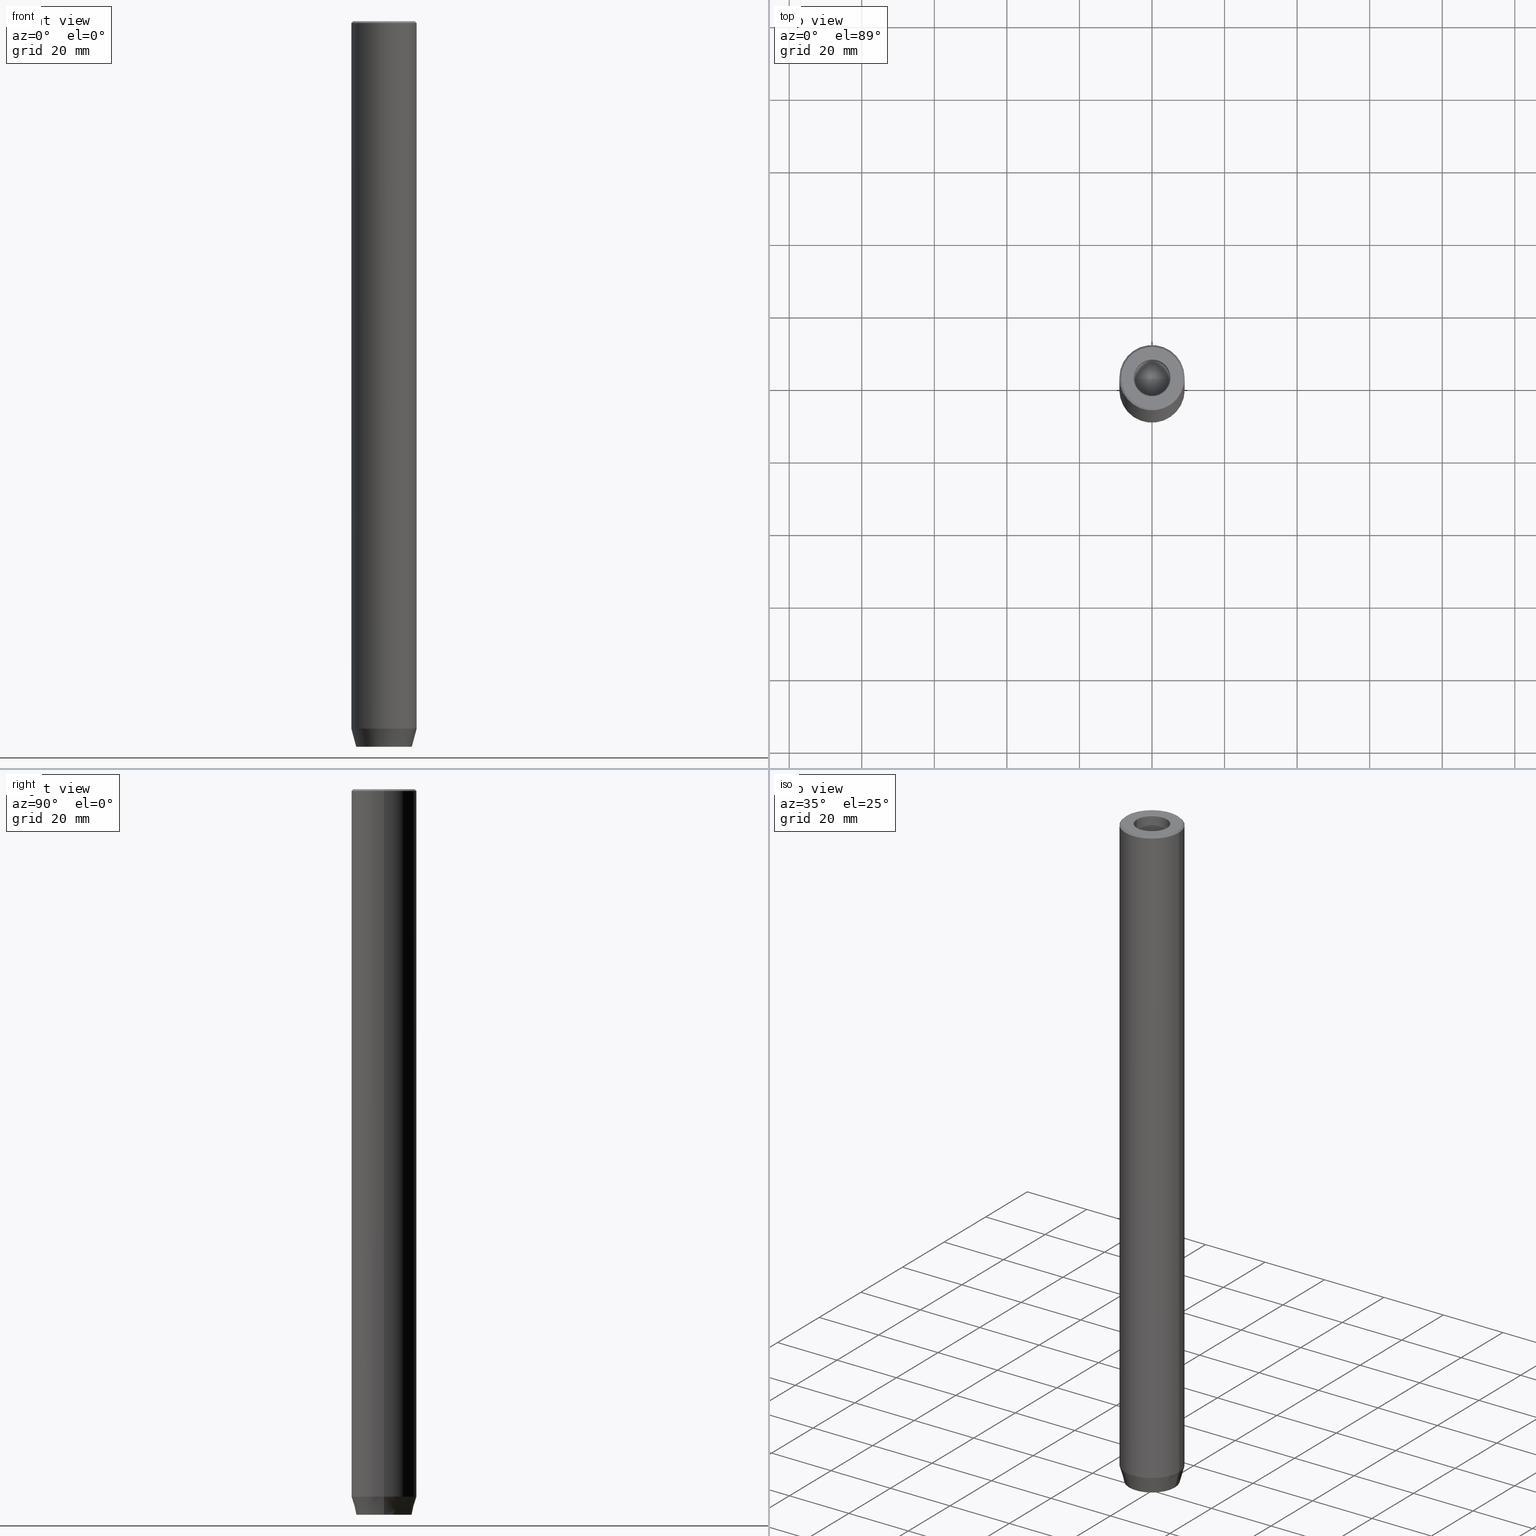
[diagram: canonical four-view strip — front | top / right | iso, engineering-drawing reading convention]
A machine part, canonical four-view strip (front | top / right | iso — engineering-drawing reading convention). The complete STEP part file that produces these views, byte-faithful:
ISO-10303-21;
HEADER;
FILE_DESCRIPTION (( 'STEP AP203' ),
    '1' );
FILE_NAME ('695a.STEP',
    '2024-01-02T17:27:58',
    ( '' ),
    ( '' ),
    'SwSTEP 2.0',
    'SolidWorks 2019',
    '' );
FILE_SCHEMA (( 'CONFIG_CONTROL_DESIGN' ));
ENDSEC;

DATA;
#1 = AXIS2_PLACEMENT_3D ( 'NONE', #611, #372, #420 ) ;
#2 = LOCAL_TIME ( 18, 27, 58.00000000000000000, #444 ) ;
#3 = EDGE_CURVE ( 'NONE', #316, #88, #333, .T. ) ;
#4 = DIRECTION ( 'NONE',  ( 1.000000000000000000, 0.000000000000000000, 0.000000000000000000 ) ) ;
#5 = CARTESIAN_POINT ( 'NONE',  ( 0.000000000000000000, 0.000000000000000000, -195.0000000000000000 ) ) ;
#6 = VERTEX_POINT ( 'NONE', #570 ) ;
#7 = PERSON_AND_ORGANIZATION_ROLE ( 'classification_officer' ) ;
#8 = DIRECTION ( 'NONE',  ( 0.8660254037844387076, -0.4999999999999997780, 0.000000000000000000 ) ) ;
#9 = ORIENTED_EDGE ( 'NONE', *, *, #29, .F. ) ;
#10 = DIRECTION ( 'NONE',  ( 1.000000000000000000, 0.000000000000000000, 0.000000000000000000 ) ) ;
#11 = FACE_OUTER_BOUND ( 'NONE', #560, .T. ) ;
#12 = PLANE ( 'NONE',  #124 ) ;
#13 = ORIENTED_EDGE ( 'NONE', *, *, #536, .T. ) ;
#14 = CALENDAR_DATE ( 2024, 2, 1 ) ;
#15 = CONICAL_SURFACE ( 'NONE', #328, 8.500000000000007105, 0.7853981633974447263 ) ;
#16 = VECTOR ( 'NONE', #206, 1000.000000000000114 ) ;
#17 = DIRECTION ( 'NONE',  ( 0.000000000000000000, 0.000000000000000000, -1.000000000000000000 ) ) ;
#18 = FACE_OUTER_BOUND ( 'NONE', #561, .T. ) ;
#19 = DIRECTION ( 'NONE',  ( 1.000000000000000000, 0.000000000000000000, 0.000000000000000000 ) ) ;
#20 = ORIENTED_EDGE ( 'NONE', *, *, #636, .F. ) ;
#21 = FACE_BOUND ( 'NONE', #282, .T. ) ;
#22 = DIRECTION ( 'NONE',  ( -0.000000000000000000, -0.000000000000000000, 1.000000000000000000 ) ) ;
#23 = DIRECTION ( 'NONE',  ( -0.000000000000000000, -0.000000000000000000, 1.000000000000000000 ) ) ;
#24 = ORIENTED_EDGE ( 'NONE', *, *, #416, .T. ) ;
#25 = DIRECTION ( 'NONE',  ( -0.000000000000000000, -0.000000000000000000, 1.000000000000000000 ) ) ;
#26 = DIRECTION ( 'NONE',  ( -2.503857664561932376E-16, -1.000000000000000000, 0.000000000000000000 ) ) ;
#27 = DIRECTION ( 'NONE',  ( -0.000000000000000000, -0.000000000000000000, 1.000000000000000000 ) ) ;
#28 = VECTOR ( 'NONE', #515, 1000.000000000000000 ) ;
#29 = EDGE_CURVE ( 'NONE', #35, #577, #273, .T. ) ;
#30 = DIRECTION ( 'NONE',  ( -1.000000000000000000, 0.000000000000000000, -0.000000000000000000 ) ) ;
#31 = APPROVAL_PERSON_ORGANIZATION ( #506, #437, #251 ) ;
#32 = EDGE_CURVE ( 'NONE', #88, #621, #207, .T. ) ;
#33 = LINE ( 'NONE', #327, #69 ) ;
#34 = PLANE ( 'NONE',  #583 ) ;
#35 = VERTEX_POINT ( 'NONE', #417 ) ;
#36 = PLANE ( 'NONE',  #180 ) ;
#37 = ADVANCED_FACE ( 'NONE', ( #568 ), #36, .F. ) ;
#38 = ORIENTED_EDGE ( 'NONE', *, *, #32, .F. ) ;
#39 = CARTESIAN_POINT ( 'NONE',  ( -8.500000000000007105, 0.000000000000000000, 0.000000000000000000 ) ) ;
#40 = EDGE_LOOP ( 'NONE', ( #534, #91, #280, #38 ) ) ;
#41 = VECTOR ( 'NONE', #290, 1000.000000000000114 ) ;
#42 = VERTEX_POINT ( 'NONE', #39 ) ;
#43 = UNCERTAINTY_MEASURE_WITH_UNIT (LENGTH_MEASURE( 1.000000000000000082E-05 ), #162, 'distance_accuracy_value', 'NONE');
#44 = CARTESIAN_POINT ( 'NONE',  ( 8.500000000000007105, 1.071565949253934321E-15, 0.000000000000000000 ) ) ;
#45 = VECTOR ( 'NONE', #558, 1000.000000000000114 ) ;
#46 = DIRECTION ( 'NONE',  ( 0.000000000000000000, 0.000000000000000000, -1.000000000000000000 ) ) ;
#47 = VECTOR ( 'NONE', #538, 1000.000000000000000 ) ;
#48 = EDGE_CURVE ( 'NONE', #138, #556, #233, .T. ) ;
#49 = CARTESIAN_POINT ( 'NONE',  ( -3.000000000000000000, 1.732050807568877859, -194.2000000000000171 ) ) ;
#50 = PERSON_AND_ORGANIZATION ( #546, #148 ) ;
#51 = EDGE_CURVE ( 'NONE', #42, #505, #33, .T. ) ;
#52 = FACE_OUTER_BOUND ( 'NONE', #216, .T. ) ;
#53 = EDGE_CURVE ( 'NONE', #59, #465, #540, .T. ) ;
#54 = CALENDAR_DATE ( 2024, 2, 1 ) ;
#55 = PRODUCT_DEFINITION ( 'NEZN�M�', '', #381, #488 ) ;
#56 = LINE ( 'NONE', #348, #432 ) ;
#57 = AXIS2_PLACEMENT_3D ( 'NONE', #565, #374, #322 ) ;
#58 = CIRCLE ( 'NONE', #247, 9.000000000000000000 ) ;
#59 = VERTEX_POINT ( 'NONE', #377 ) ;
#60 = TOROIDAL_SURFACE ( 'NONE', #172, 5.299999999999997158, 0.2999999999999999889 ) ;
#61 = FACE_OUTER_BOUND ( 'NONE', #537, .T. ) ;
#62 = ORIENTED_EDGE ( 'NONE', *, *, #291, .T. ) ;
#63 = COORDINATED_UNIVERSAL_TIME_OFFSET ( 1, 0, .AHEAD. ) ;
#64 = CARTESIAN_POINT ( 'NONE',  ( -1.499999999999999112, -2.598076211353316012, -194.2000000000000171 ) ) ;
#65 = CARTESIAN_POINT ( 'NONE',  ( -3.000000000000000888, -1.732050807568876527, -200.0000000000000000 ) ) ;
#66 = VERTEX_POINT ( 'NONE', #137 ) ;
#67 = DIRECTION ( 'NONE',  ( -0.000000000000000000, -0.000000000000000000, 1.000000000000000000 ) ) ;
#68 = DIRECTION ( 'NONE',  ( -0.000000000000000000, -0.000000000000000000, 1.000000000000000000 ) ) ;
#69 = VECTOR ( 'NONE', #270, 1000.000000000000114 ) ;
#70 = ORIENTED_EDGE ( 'NONE', *, *, #231, .F. ) ;
#71 = PRODUCT_RELATED_PRODUCT_CATEGORY ( 'detail', '', ( #249 ) ) ;
#72 = CIRCLE ( 'NONE', #86, 4.999999999999995559 ) ;
#73 = AXIS2_PLACEMENT_3D ( 'NONE', #350, #301, #76 ) ;
#74 = DIRECTION ( 'NONE',  ( -0.8660254037844387076, 0.4999999999999998335, 0.000000000000000000 ) ) ;
#75 = DIRECTION ( 'NONE',  ( 1.000000000000000000, 0.000000000000000000, 0.000000000000000000 ) ) ;
#76 = DIRECTION ( 'NONE',  ( 1.000000000000000000, 0.000000000000000000, 0.000000000000000000 ) ) ;
#77 = EDGE_LOOP ( 'NONE', ( #360, #582, #380, #305 ) ) ;
#78 = DIRECTION ( 'NONE',  ( -0.000000000000000000, -0.000000000000000000, -1.000000000000000000 ) ) ;
#79 = DIRECTION ( 'NONE',  ( 2.503857664561932376E-16, 1.000000000000000000, 0.000000000000000000 ) ) ;
#80 = EDGE_LOOP ( 'NONE', ( #93, #90, #209, #250 ) ) ;
#81 = ADVANCED_FACE ( 'NONE', ( #475 ), #403, .T. ) ;
#82 = PLANE ( 'NONE',  #502 ) ;
#83 = FACE_OUTER_BOUND ( 'NONE', #185, .T. ) ;
#84 = EDGE_CURVE ( 'NONE', #96, #331, #123, .T. ) ;
#85 = CARTESIAN_POINT ( 'NONE',  ( 0.000000000000000000, 0.000000000000000000, -200.0000000000000000 ) ) ;
#86 = AXIS2_PLACEMENT_3D ( 'NONE', #567, #22, #321 ) ;
#87 = PLANE ( 'NONE',  #630 ) ;
#88 = VERTEX_POINT ( 'NONE', #98 ) ;
#89 = DIRECTION ( 'NONE',  ( 1.000000000000000000, 0.000000000000000000, 0.000000000000000000 ) ) ;
#90 = ORIENTED_EDGE ( 'NONE', *, *, #469, .F. ) ;
#91 = ORIENTED_EDGE ( 'NONE', *, *, #252, .T. ) ;
#92 = ORIENTED_EDGE ( 'NONE', *, *, #471, .F. ) ;
#93 = ORIENTED_EDGE ( 'NONE', *, *, #215, .F. ) ;
#94 = CIRCLE ( 'NONE', #334, 9.000000000000000000 ) ;
#95 = VECTOR ( 'NONE', #308, 1000.000000000000000 ) ;
#96 = VERTEX_POINT ( 'NONE', #587 ) ;
#97 = CC_DESIGN_DATE_AND_TIME_ASSIGNMENT ( #392, #402, ( #55 ) ) ;
#98 = CARTESIAN_POINT ( 'NONE',  ( 5.299999999999997158, 0.000000000000000000, 0.000000000000000000 ) ) ;
#99 = DIRECTION ( 'NONE',  ( 1.000000000000000000, 0.000000000000000000, 0.000000000000000000 ) ) ;
#100 = APPROVAL_PERSON_ORGANIZATION ( #210, #573, #407 ) ;
#101 = EDGE_CURVE ( 'NONE', #434, #485, #145, .T. ) ;
#102 = LINE ( 'NONE', #344, #604 ) ;
#103 = CALENDAR_DATE ( 2024, 2, 1 ) ;
#104 = DIRECTION ( 'NONE',  ( 0.000000000000000000, 0.000000000000000000, -1.000000000000000000 ) ) ;
#105 = DATE_AND_TIME ( #54, #605 ) ;
#106 = CARTESIAN_POINT ( 'NONE',  ( 0.000000000000000000, 0.000000000000000000, -0.2999999999999999889 ) ) ;
#107 = ORIENTED_EDGE ( 'NONE', *, *, #84, .F. ) ;
#108 = VECTOR ( 'NONE', #400, 1000.000000000000114 ) ;
#109 = CARTESIAN_POINT ( 'NONE',  ( 0.000000000000000000, 0.000000000000000000, 0.000000000000000000 ) ) ;
#110 = DIRECTION ( 'NONE',  ( 1.000000000000000000, 0.000000000000000000, 0.000000000000000000 ) ) ;
#111 = VERTEX_POINT ( 'NONE', #436 ) ;
#112 = PERSON_AND_ORGANIZATION ( #546, #148 ) ;
#113 = CARTESIAN_POINT ( 'NONE',  ( 0.000000000000000000, 0.000000000000000000, 0.000000000000000000 ) ) ;
#114 = CARTESIAN_POINT ( 'NONE',  ( 0.000000000000000000, 0.000000000000000000, -20.00000000000000000 ) ) ;
#115 = EDGE_LOOP ( 'NONE', ( #458, #166, #528, #70 ) ) ;
#116 = CC_DESIGN_PERSON_AND_ORGANIZATION_ASSIGNMENT ( #112, #204, ( #249 ) ) ;
#117 = ORIENTED_EDGE ( 'NONE', *, *, #416, .F. ) ;
#118 = CARTESIAN_POINT ( 'NONE',  ( 0.000000000000000000, 7.660254037844380193, -200.0000000000000000 ) ) ;
#119 = CARTESIAN_POINT ( 'NONE',  ( 0.000000000000000000, 0.000000000000000000, -195.0000000000000000 ) ) ;
#120 = CARTESIAN_POINT ( 'NONE',  ( 0.000000000000000000, 0.000000000000000000, -0.2999999999999999889 ) ) ;
#121 = ORIENTED_EDGE ( 'NONE', *, *, #624, .F. ) ;
#122 = ORIENTED_EDGE ( 'NONE', *, *, #325, .F. ) ;
#123 = CIRCLE ( 'NONE', #535, 9.000000000000000000 ) ;
#124 = AXIS2_PLACEMENT_3D ( 'NONE', #612, #405, #160 ) ;
#125 = EDGE_CURVE ( 'NONE', #6, #505, #368, .T. ) ;
#126 = DIRECTION ( 'NONE',  ( 0.000000000000000000, 0.000000000000000000, -1.000000000000000000 ) ) ;
#127 = PLANE ( 'NONE',  #242 ) ;
#128 = ADVANCED_FACE ( 'NONE', ( #192 ), #548, .T. ) ;
#129 = DIRECTION ( 'NONE',  ( -0.4999999999999998335, 0.8660254037844388186, 0.000000000000000000 ) ) ;
#130 = DIRECTION ( 'NONE',  ( 0.8660254037844385966, 0.4999999999999998890, 0.000000000000000000 ) ) ;
#131 = DIRECTION ( 'NONE',  ( -0.000000000000000000, -0.000000000000000000, 1.000000000000000000 ) ) ;
#132 = ORIENTED_EDGE ( 'NONE', *, *, #29, .T. ) ;
#133 = DIRECTION ( 'NONE',  ( -0.000000000000000000, -0.000000000000000000, 1.000000000000000000 ) ) ;
#134 = CARTESIAN_POINT ( 'NONE',  ( 1.499999999999999556, -2.598076211353316012, -200.0000000000000000 ) ) ;
#135 = VECTOR ( 'NONE', #78, 1000.000000000000000 ) ;
#136 = EDGE_LOOP ( 'NONE', ( #365, #228, #179, #406 ) ) ;
#137 = CARTESIAN_POINT ( 'NONE',  ( 0.000000000000000000, -3.464101615137753942, -194.2000000000000171 ) ) ;
#138 = VERTEX_POINT ( 'NONE', #496 ) ;
#139 = EDGE_LOOP ( 'NONE', ( #520, #576 ) ) ;
#140 = ORIENTED_EDGE ( 'NONE', *, *, #252, .F. ) ;
#141 = VECTOR ( 'NONE', #498, 1000.000000000000000 ) ;
#142 = EDGE_CURVE ( 'NONE', #258, #138, #196, .T. ) ;
#143 = EDGE_CURVE ( 'NONE', #505, #6, #94, .T. ) ;
#144 = FACE_OUTER_BOUND ( 'NONE', #266, .T. ) ;
#145 = LINE ( 'NONE', #340, #41 ) ;
#146 = CONICAL_SURFACE ( 'NONE', #234, 9.000000000000000000, 0.2617993877991502405 ) ;
#147 = CYLINDRICAL_SURFACE ( 'NONE', #284, 9.000000000000000000 ) ;
#148 = ORGANIZATION ( 'NEUR�EN�', 'NEUR�EN�', '' ) ;
#149 = APPROVAL_STATUS ( 'not_yet_approved' ) ;
#150 = DIRECTION ( 'NONE',  ( 2.503857664561932376E-16, 1.000000000000000000, 0.000000000000000000 ) ) ;
#151 = LINE ( 'NONE', #468, #197 ) ;
#152 = ORIENTED_EDGE ( 'NONE', *, *, #442, .F. ) ;
#153 = SECURITY_CLASSIFICATION_LEVEL ( 'unclassified' ) ;
#154 = CARTESIAN_POINT ( 'NONE',  ( 0.000000000000000000, 3.464101615137753054, -194.2000000000000171 ) ) ;
#155 = CIRCLE ( 'NONE', #562, 8.500000000000007105 ) ;
#156 = ORIENTED_EDGE ( 'NONE', *, *, #442, .T. ) ;
#157 = APPLICATION_PROTOCOL_DEFINITION ( 'international standard', 'config_control_design', 1994, #337 ) ;
#158 = EDGE_CURVE ( 'NONE', #281, #552, #102, .T. ) ;
#159 = CARTESIAN_POINT ( 'NONE',  ( 0.000000000000000000, 0.000000000000000000, -200.0000000000000000 ) ) ;
#160 = DIRECTION ( 'NONE',  ( 1.000000000000000000, 0.000000000000000000, 0.000000000000000000 ) ) ;
#161 = ORIENTED_EDGE ( 'NONE', *, *, #215, .T. ) ;
#162 =( LENGTH_UNIT ( ) NAMED_UNIT ( * ) SI_UNIT ( .MILLI., .METRE. ) );
#163 = CARTESIAN_POINT ( 'NONE',  ( -5.299999999999997158, 6.490628035480969952E-16, 0.000000000000000000 ) ) ;
#164 = DIRECTION ( 'NONE',  ( -0.4999999999999998335, -0.8660254037844387076, 0.000000000000000000 ) ) ;
#165 = CARTESIAN_POINT ( 'NONE',  ( 0.000000000000000000, 0.000000000000000000, -0.2999999999999999889 ) ) ;
#166 = ORIENTED_EDGE ( 'NONE', *, *, #347, .T. ) ;
#167 = SHAPE_DEFINITION_REPRESENTATION ( #596, #229 ) ;
#168 = ADVANCED_FACE ( 'NONE', ( #52 ), #15, .T. ) ;
#169 = CARTESIAN_POINT ( 'NONE',  ( 1.499999999999999556, -2.598076211353316012, -194.2000000000000171 ) ) ;
#170 = DIRECTION ( 'NONE',  ( -0.8660254037844387076, 0.4999999999999997780, 0.000000000000000000 ) ) ;
#171 = ORIENTED_EDGE ( 'NONE', *, *, #585, .T. ) ;
#172 = AXIS2_PLACEMENT_3D ( 'NONE', #106, #398, #201 ) ;
#173 = DIRECTION ( 'NONE',  ( -0.000000000000000000, -0.000000000000000000, -1.000000000000000000 ) ) ;
#174 = CARTESIAN_POINT ( 'NONE',  ( -9.000000000000000000, 1.102182119232617714E-15, 0.000000000000000000 ) ) ;
#175 = ORIENTED_EDGE ( 'NONE', *, *, #3, .T. ) ;
#176 = DIRECTION ( 'NONE',  ( 1.000000000000000000, 0.000000000000000000, 0.000000000000000000 ) ) ;
#177 = ORIENTED_EDGE ( 'NONE', *, *, #142, .T. ) ;
#178 = ORIENTED_EDGE ( 'NONE', *, *, #373, .F. ) ;
#179 = ORIENTED_EDGE ( 'NONE', *, *, #143, .T. ) ;
#180 = AXIS2_PLACEMENT_3D ( 'NONE', #484, #129, #319 ) ;
#181 = VECTOR ( 'NONE', #170, 1000.000000000000114 ) ;
#182 = ORIENTED_EDGE ( 'NONE', *, *, #588, .T. ) ;
#183 = CC_DESIGN_DATE_AND_TIME_ASSIGNMENT ( #303, #547, ( #620 ) ) ;
#184 = EDGE_LOOP ( 'NONE', ( #132, #178, #262, #62 ) ) ;
#185 = EDGE_LOOP ( 'NONE', ( #152, #378, #499, #107 ) ) ;
#186 = EDGE_CURVE ( 'NONE', #331, #6, #589, .T. ) ;
#187 = EDGE_CURVE ( 'NONE', #616, #434, #495, .T. ) ;
#188 = AXIS2_PLACEMENT_3D ( 'NONE', #159, #67, #606 ) ;
#189 = AXIS2_PLACEMENT_3D ( 'NONE', #165, #214, #110 ) ;
#190 = DIRECTION ( 'NONE',  ( 0.000000000000000000, 0.000000000000000000, -1.000000000000000000 ) ) ;
#191 = ADVANCED_FACE ( 'NONE', ( #295 ), #147, .T. ) ;
#192 = FACE_OUTER_BOUND ( 'NONE', #80, .T. ) ;
#193 = DIRECTION ( 'NONE',  ( -1.000000000000000000, 0.000000000000000000, 0.000000000000000000 ) ) ;
#194 = PERSON_AND_ORGANIZATION ( #546, #148 ) ;
#195 = VECTOR ( 'NONE', #390, 1000.000000000000000 ) ;
#196 = LINE ( 'NONE', #491, #274 ) ;
#197 = VECTOR ( 'NONE', #8, 1000.000000000000114 ) ;
#198 = APPROVAL_STATUS ( 'not_yet_approved' ) ;
#199 = LINE ( 'NONE', #257, #16 ) ;
#200 = ORIENTED_EDGE ( 'NONE', *, *, #418, .T. ) ;
#201 = DIRECTION ( 'NONE',  ( 1.000000000000000000, 0.000000000000000000, 0.000000000000000000 ) ) ;
#202 = VERTEX_POINT ( 'NONE', #44 ) ;
#203 = APPROVAL ( #149, 'NEUR�EN�' ) ;
#204 = PERSON_AND_ORGANIZATION_ROLE ( 'design_owner' ) ;
#205 = LINE ( 'NONE', #553, #393 ) ;
#206 = DIRECTION ( 'NONE',  ( 0.2588190451025214611, 0.000000000000000000, 0.9659258262890679791 ) ) ;
#207 = CIRCLE ( 'NONE', #57, 0.2999999999999999889 ) ;
#208 = AXIS2_PLACEMENT_3D ( 'NONE', #362, #462, #358 ) ;
#209 = ORIENTED_EDGE ( 'NONE', *, *, #51, .T. ) ;
#210 = PERSON_AND_ORGANIZATION ( #546, #148 ) ;
#211 = EDGE_CURVE ( 'NONE', #572, #434, #246, .T. ) ;
#212 = LINE ( 'NONE', #320, #590 ) ;
#213 = CARTESIAN_POINT ( 'NONE',  ( -9.000000000000000000, 1.102182119232617714E-15, -195.0000000000000000 ) ) ;
#214 = DIRECTION ( 'NONE',  ( -0.000000000000000000, -0.000000000000000000, 1.000000000000000000 ) ) ;
#215 = EDGE_CURVE ( 'NONE', #202, #6, #56, .T. ) ;
#216 = EDGE_LOOP ( 'NONE', ( #122, #161, #489, #530 ) ) ;
#217 = LINE ( 'NONE', #169, #300 ) ;
#218 = FACE_OUTER_BOUND ( 'NONE', #330, .T. ) ;
#219 = ORIENTED_EDGE ( 'NONE', *, *, #291, .F. ) ;
#220 = CARTESIAN_POINT ( 'NONE',  ( -3.000000000000000888, -1.732050807568876527, -194.2000000000000171 ) ) ;
#221 = CARTESIAN_POINT ( 'NONE',  ( 7.660254037844380193, 0.000000000000000000, -200.0000000000000000 ) ) ;
#222 = ORIENTED_EDGE ( 'NONE', *, *, #158, .T. ) ;
#223 = AXIS2_PLACEMENT_3D ( 'NONE', #396, #46, #539 ) ;
#224 = CC_DESIGN_SECURITY_CLASSIFICATION ( #620, ( #381 ) ) ;
#225 = CARTESIAN_POINT ( 'NONE',  ( 0.000000000000000000, 0.000000000000000000, 0.000000000000000000 ) ) ;
#226 = DIRECTION ( 'NONE',  ( -0.000000000000000000, -0.000000000000000000, 1.000000000000000000 ) ) ;
#227 = DIRECTION ( 'NONE',  ( -2.503857664561932376E-16, -1.000000000000000000, 0.000000000000000000 ) ) ;
#228 = ORIENTED_EDGE ( 'NONE', *, *, #509, .T. ) ;
#229 = ADVANCED_BREP_SHAPE_REPRESENTATION ( '695a', ( #423, #275 ), #433 ) ;
#230 = ORIENTED_EDGE ( 'NONE', *, *, #471, .T. ) ;
#231 = EDGE_CURVE ( 'NONE', #626, #621, #387, .T. ) ;
#232 = ORIENTED_EDGE ( 'NONE', *, *, #394, .T. ) ;
#233 = LINE ( 'NONE', #523, #571 ) ;
#234 = AXIS2_PLACEMENT_3D ( 'NONE', #119, #467, #75 ) ;
#235 = CC_DESIGN_APPROVAL ( #203, ( #55 ) ) ;
#236 = VERTEX_POINT ( 'NONE', #248 ) ;
#237 = EDGE_CURVE ( 'NONE', #331, #96, #58, .T. ) ;
#238 = ADVANCED_FACE ( 'NONE', ( #144 ), #338, .F. ) ;
#239 = EDGE_LOOP ( 'NONE', ( #140, #633, #513, #121 ) ) ;
#240 = ADVANCED_FACE ( 'NONE', ( #21, #419 ), #371, .T. ) ;
#241 = DIRECTION ( 'NONE',  ( -0.000000000000000000, -0.000000000000000000, 1.000000000000000000 ) ) ;
#242 = AXIS2_PLACEMENT_3D ( 'NONE', #522, #272, #79 ) ;
#243 = DIRECTION ( 'NONE',  ( -1.000000000000000000, 2.503857664561932376E-16, 0.000000000000000000 ) ) ;
#244 = CARTESIAN_POINT ( 'NONE',  ( 4.999999999999997335, 0.000000000000000000, 0.000000000000000000 ) ) ;
#245 = CC_DESIGN_PERSON_AND_ORGANIZATION_ASSIGNMENT ( #194, #592, ( #381 ) ) ;
#246 = LINE ( 'NONE', #639, #447 ) ;
#247 = AXIS2_PLACEMENT_3D ( 'NONE', #5, #241, #586 ) ;
#248 = CARTESIAN_POINT ( 'NONE',  ( 3.000000000000000000, 1.732050807568877193, -200.0000000000000000 ) ) ;
#249 = PRODUCT ( '695a', '695a', '', ( #460 ) ) ;
#250 = ORIENTED_EDGE ( 'NONE', *, *, #125, .F. ) ;
#251 = APPROVAL_ROLE ( '' ) ;
#252 = EDGE_CURVE ( 'NONE', #316, #111, #421, .T. ) ;
#253 = CARTESIAN_POINT ( 'NONE',  ( 4.999999999999997335, 0.000000000000000000, -0.2999999999999999889 ) ) ;
#254 = ADVANCED_FACE ( 'NONE', ( #569 ), #82, .F. ) ;
#255 = ORIENTED_EDGE ( 'NONE', *, *, #339, .F. ) ;
#256 = FACE_OUTER_BOUND ( 'NONE', #336, .T. ) ;
#257 = CARTESIAN_POINT ( 'NONE',  ( 9.000000000000000000, 0.000000000000000000, -195.0000000000000000 ) ) ;
#258 = VERTEX_POINT ( 'NONE', #263 ) ;
#259 = DATE_AND_TIME ( #497, #285 ) ;
#260 = LINE ( 'NONE', #269, #386 ) ;
#261 = CARTESIAN_POINT ( 'NONE',  ( 0.000000000000000000, 0.000000000000000000, -195.0000000000000000 ) ) ;
#262 = ORIENTED_EDGE ( 'NONE', *, *, #299, .F. ) ;
#263 = CARTESIAN_POINT ( 'NONE',  ( 0.000000000000000000, 3.464101615137753054, -194.2000000000000171 ) ) ;
#264 = LINE ( 'NONE', #410, #529 ) ;
#265 = DIRECTION ( 'NONE',  ( 0.8660254037844387076, 0.4999999999999997224, 0.000000000000000000 ) ) ;
#266 = EDGE_LOOP ( 'NONE', ( #514, #627, #451, #297 ) ) ;
#267 = ORIENTED_EDGE ( 'NONE', *, *, #636, .T. ) ;
#268 = DIRECTION ( 'NONE',  ( -0.000000000000000000, -0.000000000000000000, -1.000000000000000000 ) ) ;
#269 = CARTESIAN_POINT ( 'NONE',  ( -3.000000000000000444, 7.511572993685798115E-16, -194.2000000000000171 ) ) ;
#270 = DIRECTION ( 'NONE',  ( -0.7071067811865451302, 0.000000000000000000, -0.7071067811865500152 ) ) ;
#271 = FACE_OUTER_BOUND ( 'NONE', #481, .T. ) ;
#272 = DIRECTION ( 'NONE',  ( 1.000000000000000000, -2.503857664561932376E-16, 0.000000000000000000 ) ) ;
#273 = LINE ( 'NONE', #134, #601 ) ;
#274 = VECTOR ( 'NONE', #441, 1000.000000000000114 ) ;
#275 = AXIS2_PLACEMENT_3D ( 'NONE', #109, #455, #10 ) ;
#276 = DIRECTION ( 'NONE',  ( 1.224646799147353207E-16, 1.000000000000000000, 0.000000000000000000 ) ) ;
#277 = ORIENTED_EDGE ( 'NONE', *, *, #459, .F. ) ;
#278 = ADVANCED_FACE ( 'NONE', ( #271 ), #87, .T. ) ;
#279 = DIRECTION ( 'NONE',  ( -0.8660254037844387076, -0.4999999999999999445, 0.000000000000000000 ) ) ;
#280 = ORIENTED_EDGE ( 'NONE', *, *, #631, .F. ) ;
#281 = VERTEX_POINT ( 'NONE', #610 ) ;
#282 = EDGE_LOOP ( 'NONE', ( #302, #412, #545, #9, #277, #329 ) ) ;
#283 = EDGE_CURVE ( 'NONE', #356, #572, #366, .T. ) ;
#284 = AXIS2_PLACEMENT_3D ( 'NONE', #445, #593, #293 ) ;
#285 = LOCAL_TIME ( 18, 27, 58.00000000000000000, #345 ) ;
#286 = EDGE_LOOP ( 'NONE', ( #429, #287 ) ) ;
#287 = ORIENTED_EDGE ( 'NONE', *, *, #53, .F. ) ;
#288 = CARTESIAN_POINT ( 'NONE',  ( -3.000000000000000444, 7.511572993685798115E-16, -194.2000000000000171 ) ) ;
#289 = AXIS2_PLACEMENT_3D ( 'NONE', #622, #563, #176 ) ;
#290 = DIRECTION ( 'NONE',  ( 0.8660254037844387076, 0.4999999999999997224, 0.000000000000000000 ) ) ;
#291 = EDGE_CURVE ( 'NONE', #556, #35, #212, .T. ) ;
#292 = DATE_AND_TIME ( #609, #463 ) ;
#293 = DIRECTION ( 'NONE',  ( 1.000000000000000000, 0.000000000000000000, 0.000000000000000000 ) ) ;
#294 =( NAMED_UNIT ( * ) PLANE_ANGLE_UNIT ( ) SI_UNIT ( $, .RADIAN. ) );
#295 = FACE_OUTER_BOUND ( 'NONE', #136, .T. ) ;
#296 = ADVANCED_FACE ( 'NONE', ( #614 ), #34, .F. ) ;
#297 = ORIENTED_EDGE ( 'NONE', *, *, #283, .T. ) ;
#298 = APPROVAL_DATE_TIME ( #259, #203 ) ;
#299 = EDGE_CURVE ( 'NONE', #556, #66, #217, .T. ) ;
#300 = VECTOR ( 'NONE', #311, 999.9999999999998863 ) ;
#301 = DIRECTION ( 'NONE',  ( 0.000000000000000000, 0.000000000000000000, -1.000000000000000000 ) ) ;
#302 = ORIENTED_EDGE ( 'NONE', *, *, #101, .F. ) ;
#303 = DATE_AND_TIME ( #14, #494 ) ;
#304 = DIRECTION ( 'NONE',  ( 1.000000000000000000, 0.000000000000000000, 0.000000000000000000 ) ) ;
#305 = ORIENTED_EDGE ( 'NONE', *, *, #125, .T. ) ;
#306 = APPROVAL_STATUS ( 'not_yet_approved' ) ;
#307 = LINE ( 'NONE', #516, #181 ) ;
#308 = DIRECTION ( 'NONE',  ( -0.000000000000000000, -0.000000000000000000, -1.000000000000000000 ) ) ;
#309 = EDGE_LOOP ( 'NONE', ( #255, #222, #200 ) ) ;
#310 = ORIENTED_EDGE ( 'NONE', *, *, #48, .T. ) ;
#311 = DIRECTION ( 'NONE',  ( -0.8660254037844387076, -0.4999999999999999445, 0.000000000000000000 ) ) ;
#312 = DIRECTION ( 'NONE',  ( -0.000000000000000000, -0.000000000000000000, -1.000000000000000000 ) ) ;
#313 = FACE_OUTER_BOUND ( 'NONE', #309, .T. ) ;
#314 = AXIS2_PLACEMENT_3D ( 'NONE', #430, #226, #89 ) ;
#315 = CC_DESIGN_APPROVAL ( #573, ( #620 ) ) ;
#316 = VERTEX_POINT ( 'NONE', #163 ) ;
#317 = CARTESIAN_POINT ( 'NONE',  ( 9.000000000000000000, 0.000000000000000000, -195.0000000000000000 ) ) ;
#318 = FACE_OUTER_BOUND ( 'NONE', #77, .T. ) ;
#319 = DIRECTION ( 'NONE',  ( -0.8660254037844387076, -0.4999999999999997780, 0.000000000000000000 ) ) ;
#320 = CARTESIAN_POINT ( 'NONE',  ( 2.999999999999999112, -1.732050807568876971, -194.2000000000000171 ) ) ;
#321 = DIRECTION ( 'NONE',  ( 1.000000000000000000, 0.000000000000000000, 0.000000000000000000 ) ) ;
#322 = DIRECTION ( 'NONE',  ( 0.000000000000000000, 0.000000000000000000, -1.000000000000000000 ) ) ;
#323 = LINE ( 'NONE', #361, #28 ) ;
#324 = ORIENTED_EDGE ( 'NONE', *, *, #391, .T. ) ;
#325 = EDGE_CURVE ( 'NONE', #202, #42, #155, .T. ) ;
#326 = VECTOR ( 'NONE', #173, 1000.000000000000000 ) ;
#327 = CARTESIAN_POINT ( 'NONE',  ( -8.500000000000007105, 0.000000000000000000, 0.000000000000000000 ) ) ;
#328 = AXIS2_PLACEMENT_3D ( 'NONE', #637, #104, #193 ) ;
#329 = ORIENTED_EDGE ( 'NONE', *, *, #536, .F. ) ;
#330 = EDGE_LOOP ( 'NONE', ( #435, #219, #401, #24 ) ) ;
#331 = VERTEX_POINT ( 'NONE', #317 ) ;
#332 = ORIENTED_EDGE ( 'NONE', *, *, #339, .T. ) ;
#333 = CIRCLE ( 'NONE', #385, 5.299999999999997158 ) ;
#334 = AXIS2_PLACEMENT_3D ( 'NONE', #543, #443, #99 ) ;
#335 = AXIS2_PLACEMENT_3D ( 'NONE', #114, #415, #4 ) ;
#336 = EDGE_LOOP ( 'NONE', ( #364, #332, #510 ) ) ;
#337 = APPLICATION_CONTEXT ( 'configuration controlled 3d designs of mechanical parts and assemblies' ) ;
#338 = PLANE ( 'NONE',  #617 ) ;
#339 = EDGE_CURVE ( 'NONE', #281, #626, #323, .T. ) ;
#340 = CARTESIAN_POINT ( 'NONE',  ( -1.499999999999999334, 2.598076211353316456, -200.0000000000000000 ) ) ;
#341 = AXIS2_PLACEMENT_3D ( 'NONE', #85, #27, #623 ) ;
#342 = CIRCLE ( 'NONE', #379, 8.500000000000007105 ) ;
#343 = VECTOR ( 'NONE', #131, 1000.000000000000000 ) ;
#344 = CARTESIAN_POINT ( 'NONE',  ( -4.999999999999995559, 6.123233995736761352E-16, -20.00000000000000000 ) ) ;
#345 = COORDINATED_UNIVERSAL_TIME_OFFSET ( 1, 0, .AHEAD. ) ;
#346 = ADVANCED_FACE ( 'NONE', ( #521 ), #426, .F. ) ;
#347 = EDGE_CURVE ( 'NONE', #552, #111, #466, .T. ) ;
#348 = CARTESIAN_POINT ( 'NONE',  ( 8.500000000000007105, 1.040949779275251126E-15, 0.000000000000000000 ) ) ;
#349 = PERSON_AND_ORGANIZATION ( #546, #148 ) ;
#350 = CARTESIAN_POINT ( 'NONE',  ( 0.000000000000000000, 0.000000000000000000, 0.000000000000000000 ) ) ;
#351 = ORIENTED_EDGE ( 'NONE', *, *, #101, .T. ) ;
#352 = COORDINATED_UNIVERSAL_TIME_OFFSET ( 1, 0, .AHEAD. ) ;
#353 = AXIS2_PLACEMENT_3D ( 'NONE', #524, #276, #428 ) ;
#354 = CARTESIAN_POINT ( 'NONE',  ( -4.999999999999995559, 6.123233995736761352E-16, -20.00000000000000000 ) ) ;
#355 = CIRCLE ( 'NONE', #503, 4.999999999999995559 ) ;
#356 = VERTEX_POINT ( 'NONE', #220 ) ;
#357 = PERSON_AND_ORGANIZATION ( #546, #148 ) ;
#358 = DIRECTION ( 'NONE',  ( 1.000000000000000000, 0.000000000000000000, 0.000000000000000000 ) ) ;
#359 = DIRECTION ( 'NONE',  ( -0.000000000000000000, -0.000000000000000000, 1.000000000000000000 ) ) ;
#360 = ORIENTED_EDGE ( 'NONE', *, *, #509, .F. ) ;
#361 = CARTESIAN_POINT ( 'NONE',  ( 4.999999999999995559, 0.000000000000000000, -20.00000000000000000 ) ) ;
#362 = CARTESIAN_POINT ( 'NONE',  ( 0.000000000000000000, 0.000000000000000000, -20.00000000000000000 ) ) ;
#363 = FACE_BOUND ( 'NONE', #399, .T. ) ;
#364 = ORIENTED_EDGE ( 'NONE', *, *, #158, .F. ) ;
#365 = ORIENTED_EDGE ( 'NONE', *, *, #237, .T. ) ;
#366 = LINE ( 'NONE', #480, #135 ) ;
#367 = CARTESIAN_POINT ( 'NONE',  ( -3.000000000000000000, 1.732050807568877859, -200.0000000000000000 ) ) ;
#368 = CIRCLE ( 'NONE', #486, 9.000000000000000000 ) ;
#369 = CONICAL_SURFACE ( 'NONE', #517, 9.000000000000000000, 0.2617993877991502405 ) ;
#370 = CARTESIAN_POINT ( 'NONE',  ( 0.000000000000000000, 0.000000000000000000, 0.000000000000000000 ) ) ;
#371 = PLANE ( 'NONE',  #574 ) ;
#372 = DIRECTION ( 'NONE',  ( -0.000000000000000000, -0.000000000000000000, 1.000000000000000000 ) ) ;
#373 = EDGE_CURVE ( 'NONE', #66, #577, #618, .T. ) ;
#374 = DIRECTION ( 'NONE',  ( 0.000000000000000000, -1.000000000000000000, 0.000000000000000000 ) ) ;
#375 = ADVANCED_FACE ( 'NONE', ( #18 ), #414, .F. ) ;
#376 = CARTESIAN_POINT ( 'NONE',  ( 0.000000000000000000, -3.464101615137753942, -194.2000000000000171 ) ) ;
#377 = CARTESIAN_POINT ( 'NONE',  ( -7.660254037844380193, 1.020146339021394272E-15, -200.0000000000000000 ) ) ;
#378 = ORIENTED_EDGE ( 'NONE', *, *, #53, .T. ) ;
#379 = AXIS2_PLACEMENT_3D ( 'NONE', #113, #615, #525 ) ;
#380 = ORIENTED_EDGE ( 'NONE', *, *, #186, .T. ) ;
#381 = PRODUCT_DEFINITION_FORMATION_WITH_SPECIFIED_SOURCE ( 'LIBOVOLN�', '', #249, .NOT_KNOWN. ) ;
#382 = ORIENTED_EDGE ( 'NONE', *, *, #231, .T. ) ;
#383 = ORIENTED_EDGE ( 'NONE', *, *, #580, .F. ) ;
#384 = ORIENTED_EDGE ( 'NONE', *, *, #237, .F. ) ;
#385 = AXIS2_PLACEMENT_3D ( 'NONE', #370, #424, #532 ) ;
#386 = VECTOR ( 'NONE', #456, 1000.000000000000000 ) ;
#387 = LINE ( 'NONE', #244, #141 ) ;
#388 = ADVANCED_FACE ( 'NONE', ( #318 ), #511, .T. ) ;
#389 = DIRECTION ( 'NONE',  ( -0.8571673007021120005, 1.049727191138618326E-16, 0.5150380749100547106 ) ) ;
#390 = DIRECTION ( 'NONE',  ( -0.000000000000000000, -0.000000000000000000, -1.000000000000000000 ) ) ;
#391 = EDGE_CURVE ( 'NONE', #356, #616, #260, .T. ) ;
#392 = DATE_AND_TIME ( #103, #2 ) ;
#393 = VECTOR ( 'NONE', #312, 1000.000000000000000 ) ;
#394 = EDGE_CURVE ( 'NONE', #465, #59, #478, .T. ) ;
#395 = CIRCLE ( 'NONE', #73, 5.299999999999997158 ) ;
#396 = CARTESIAN_POINT ( 'NONE',  ( 0.000000000000000000, 0.000000000000000000, 0.000000000000000000 ) ) ;
#397 = APPROVAL_DATE_TIME ( #105, #437 ) ;
#398 = DIRECTION ( 'NONE',  ( -0.000000000000000000, -0.000000000000000000, 1.000000000000000000 ) ) ;
#399 = EDGE_LOOP ( 'NONE', ( #602, #175 ) ) ;
#400 = DIRECTION ( 'NONE',  ( -0.8660254037844387076, 0.4999999999999997780, 0.000000000000000000 ) ) ;
#401 = ORIENTED_EDGE ( 'NONE', *, *, #48, .F. ) ;
#402 = DATE_TIME_ROLE ( 'creation_date' ) ;
#403 = TOROIDAL_SURFACE ( 'NONE', #314, 5.299999999999997158, 0.2999999999999999889 ) ;
#404 = DIRECTION ( 'NONE',  ( 0.8660254037844387076, -0.4999999999999998335, 0.000000000000000000 ) ) ;
#405 = DIRECTION ( 'NONE',  ( 0.000000000000000000, -0.000000000000000000, 1.000000000000000000 ) ) ;
#406 = ORIENTED_EDGE ( 'NONE', *, *, #186, .F. ) ;
#407 = APPROVAL_ROLE ( '' ) ;
#408 = ADVANCED_FACE ( 'NONE', ( #256 ), #439, .F. ) ;
#409 = DIRECTION ( 'NONE',  ( 0.4999999999999999445, -0.8660254037844387076, 0.000000000000000000 ) ) ;
#410 = CARTESIAN_POINT ( 'NONE',  ( 2.999999999999999556, -7.511572993685796142E-16, -200.0000000000000000 ) ) ;
#411 = LINE ( 'NONE', #594, #108 ) ;
#412 = ORIENTED_EDGE ( 'NONE', *, *, #211, .F. ) ;
#413 = DIRECTION ( 'NONE',  ( 0.4999999999999998335, 0.8660254037844387076, -0.000000000000000000 ) ) ;
#414 = PLANE ( 'NONE',  #492 ) ;
#415 = DIRECTION ( 'NONE',  ( -0.000000000000000000, -0.000000000000000000, 1.000000000000000000 ) ) ;
#416 = EDGE_CURVE ( 'NONE', #138, #236, #205, .T. ) ;
#417 = CARTESIAN_POINT ( 'NONE',  ( 2.999999999999999112, -1.732050807568876971, -200.0000000000000000 ) ) ;
#418 = EDGE_CURVE ( 'NONE', #552, #626, #72, .T. ) ;
#419 = FACE_OUTER_BOUND ( 'NONE', #286, .T. ) ;
#420 = DIRECTION ( 'NONE',  ( 1.000000000000000000, 0.000000000000000000, 0.000000000000000000 ) ) ;
#421 = CIRCLE ( 'NONE', #353, 0.2999999999999999334 ) ;
#422 = AXIS2_PLACEMENT_3D ( 'NONE', #457, #68, #304 ) ;
#423 = MANIFOLD_SOLID_BREP ( 'Odebrat vysunut�m1', #501 ) ;
#424 = DIRECTION ( 'NONE',  ( 0.000000000000000000, 0.000000000000000000, -1.000000000000000000 ) ) ;
#425 = APPROVAL_DATE_TIME ( #292, #573 ) ;
#426 = CYLINDRICAL_SURFACE ( 'NONE', #289, 4.999999999999997335 ) ;
#427 = CARTESIAN_POINT ( 'NONE',  ( 0.000000000000000000, 0.000000000000000000, -195.0000000000000000 ) ) ;
#428 = DIRECTION ( 'NONE',  ( -1.000000000000000000, 1.224646799147353207E-16, 0.000000000000000000 ) ) ;
#429 = ORIENTED_EDGE ( 'NONE', *, *, #394, .F. ) ;
#430 = CARTESIAN_POINT ( 'NONE',  ( 0.000000000000000000, 0.000000000000000000, -0.2999999999999999889 ) ) ;
#431 = ORIENTED_EDGE ( 'NONE', *, *, #631, .T. ) ;
#432 = VECTOR ( 'NONE', #450, 1000.000000000000114 ) ;
#433 =( GEOMETRIC_REPRESENTATION_CONTEXT ( 3 ) GLOBAL_UNCERTAINTY_ASSIGNED_CONTEXT ( ( #43 ) ) GLOBAL_UNIT_ASSIGNED_CONTEXT ( ( #162, #294, #541 ) ) REPRESENTATION_CONTEXT ( 'NONE', 'WORKASPACE' ) );
#434 = VERTEX_POINT ( 'NONE', #367 ) ;
#435 = ORIENTED_EDGE ( 'NONE', *, *, #459, .T. ) ;
#436 = CARTESIAN_POINT ( 'NONE',  ( -4.999999999999997335, 6.123233995736763324E-16, -0.2999999999999999889 ) ) ;
#437 = APPROVAL ( #198, 'NEUR�EN�' ) ;
#438 = APPLICATION_CONTEXT ( 'configuration controlled 3d designs of mechanical parts and assemblies' ) ;
#439 = CONICAL_SURFACE ( 'NONE', #208, 4.999999999999995559, 1.029744258676653867 ) ;
#440 = VECTOR ( 'NONE', #265, 1000.000000000000114 ) ;
#441 = DIRECTION ( 'NONE',  ( 0.8660254037844387076, -0.4999999999999997780, 0.000000000000000000 ) ) ;
#442 = EDGE_CURVE ( 'NONE', #59, #96, #507, .T. ) ;
#443 = DIRECTION ( 'NONE',  ( 0.000000000000000000, 0.000000000000000000, -1.000000000000000000 ) ) ;
#444 = COORDINATED_UNIVERSAL_TIME_OFFSET ( 1, 0, .AHEAD. ) ;
#445 = CARTESIAN_POINT ( 'NONE',  ( 0.000000000000000000, 0.000000000000000000, 0.000000000000000000 ) ) ;
#446 = APPROVAL_ROLE ( '' ) ;
#447 = VECTOR ( 'NONE', #150, 1000.000000000000000 ) ;
#448 = CONICAL_SURFACE ( 'NONE', #335, 4.999999999999995559, 1.029744258676653867 ) ;
#449 = LINE ( 'NONE', #154, #95 ) ;
#450 = DIRECTION ( 'NONE',  ( 0.7071067811865451302, 8.659560562354903276E-17, -0.7071067811865500152 ) ) ;
#451 = ORIENTED_EDGE ( 'NONE', *, *, #391, .F. ) ;
#452 = PERSON_AND_ORGANIZATION_ROLE ( 'creator' ) ;
#453 = CARTESIAN_POINT ( 'NONE',  ( 4.999999999999995559, 0.000000000000000000, -20.00000000000000000 ) ) ;
#454 = EDGE_LOOP ( 'NONE', ( #13, #117, #597, #182 ) ) ;
#455 = DIRECTION ( 'NONE',  ( 0.000000000000000000, 0.000000000000000000, 1.000000000000000000 ) ) ;
#456 = DIRECTION ( 'NONE',  ( 2.503857664561932376E-16, 1.000000000000000000, 0.000000000000000000 ) ) ;
#457 = CARTESIAN_POINT ( 'NONE',  ( 0.000000000000000000, 0.000000000000000000, 0.000000000000000000 ) ) ;
#458 = ORIENTED_EDGE ( 'NONE', *, *, #418, .F. ) ;
#459 = EDGE_CURVE ( 'NONE', #236, #35, #264, .T. ) ;
#460 = MECHANICAL_CONTEXT ( 'NONE', #337, 'mechanical' ) ;
#461 = VECTOR ( 'NONE', #25, 1000.000000000000000 ) ;
#462 = DIRECTION ( 'NONE',  ( -0.000000000000000000, -0.000000000000000000, 1.000000000000000000 ) ) ;
#463 = LOCAL_TIME ( 18, 27, 58.00000000000000000, #63 ) ;
#464 = FACE_OUTER_BOUND ( 'NONE', #239, .T. ) ;
#465 = VERTEX_POINT ( 'NONE', #221 ) ;
#466 = LINE ( 'NONE', #472, #461 ) ;
#467 = DIRECTION ( 'NONE',  ( -0.000000000000000000, -0.000000000000000000, 1.000000000000000000 ) ) ;
#468 = CARTESIAN_POINT ( 'NONE',  ( 1.499999999999999112, 2.598076211353316012, -200.0000000000000000 ) ) ;
#469 = EDGE_CURVE ( 'NONE', #42, #202, #342, .T. ) ;
#470 = EDGE_LOOP ( 'NONE', ( #351, #483, #20, #579 ) ) ;
#471 = EDGE_CURVE ( 'NONE', #66, #356, #307, .T. ) ;
#472 = CARTESIAN_POINT ( 'NONE',  ( -4.999999999999997335, 6.123233995736763324E-16, 0.000000000000000000 ) ) ;
#473 = CARTESIAN_POINT ( 'NONE',  ( -9.000000000000000000, 1.102182119232617714E-15, -0.4999999999999952260 ) ) ;
#474 = CC_DESIGN_PERSON_AND_ORGANIZATION_ASSIGNMENT ( #349, #7, ( #620 ) ) ;
#475 = FACE_OUTER_BOUND ( 'NONE', #40, .T. ) ;
#476 = CARTESIAN_POINT ( 'NONE',  ( 1.499999999999999112, 2.598076211353316012, -194.2000000000000171 ) ) ;
#477 = CYLINDRICAL_SURFACE ( 'NONE', #422, 4.999999999999997335 ) ;
#478 = CIRCLE ( 'NONE', #188, 7.660254037844380193 ) ;
#479 = DIRECTION ( 'NONE',  ( -0.000000000000000000, -0.000000000000000000, 1.000000000000000000 ) ) ;
#480 = CARTESIAN_POINT ( 'NONE',  ( -3.000000000000000888, -1.732050807568876527, -194.2000000000000171 ) ) ;
#481 = EDGE_LOOP ( 'NONE', ( #267, #177, #310, #628, #230, #324 ) ) ;
#482 = DIRECTION ( 'NONE',  ( 1.000000000000000000, 0.000000000000000000, 0.000000000000000000 ) ) ;
#483 = ORIENTED_EDGE ( 'NONE', *, *, #588, .F. ) ;
#484 = CARTESIAN_POINT ( 'NONE',  ( -1.499999999999999334, 2.598076211353316456, -194.2000000000000171 ) ) ;
#485 = VERTEX_POINT ( 'NONE', #564 ) ;
#486 = AXIS2_PLACEMENT_3D ( 'NONE', #634, #190, #635 ) ;
#487 = CIRCLE ( 'NONE', #189, 4.999999999999997335 ) ;
#488 = DESIGN_CONTEXT ( 'detailed design', #438, 'design' ) ;
#489 = ORIENTED_EDGE ( 'NONE', *, *, #143, .F. ) ;
#490 = ADVANCED_FACE ( 'NONE', ( #83 ), #146, .T. ) ;
#491 = CARTESIAN_POINT ( 'NONE',  ( 1.499999999999999112, 2.598076211353316012, -194.2000000000000171 ) ) ;
#492 = AXIS2_PLACEMENT_3D ( 'NONE', #64, #164, #404 ) ;
#493 = ADVANCED_FACE ( 'NONE', ( #218 ), #127, .F. ) ;
#494 = LOCAL_TIME ( 18, 27, 58.00000000000000000, #352 ) ;
#495 = LINE ( 'NONE', #49, #195 ) ;
#496 = CARTESIAN_POINT ( 'NONE',  ( 3.000000000000000000, 1.732050807568877193, -194.2000000000000171 ) ) ;
#497 = CALENDAR_DATE ( 2024, 2, 1 ) ;
#498 = DIRECTION ( 'NONE',  ( -0.000000000000000000, -0.000000000000000000, 1.000000000000000000 ) ) ;
#499 = ORIENTED_EDGE ( 'NONE', *, *, #580, .T. ) ;
#500 = APPLICATION_PROTOCOL_DEFINITION ( 'international standard', 'config_control_design', 1994, #438 ) ;
#501 = CLOSED_SHELL ( 'NONE', ( #81, #346, #550, #168, #555, #191, #240, #629, #388, #490, #128, #408, #519, #578, #37, #238, #375, #296, #493, #254, #278 ) ) ;
#502 = AXIS2_PLACEMENT_3D ( 'NONE', #476, #413, #74 ) ;
#503 = AXIS2_PLACEMENT_3D ( 'NONE', #600, #23, #607 ) ;
#504 = CARTESIAN_POINT ( 'NONE',  ( -3.000000000000000000, 1.732050807568877859, -194.2000000000000171 ) ) ;
#505 = VERTEX_POINT ( 'NONE', #473 ) ;
#506 = PERSON_AND_ORGANIZATION ( #546, #148 ) ;
#507 = LINE ( 'NONE', #213, #45 ) ;
#508 = DIRECTION ( 'NONE',  ( -0.000000000000000000, -0.000000000000000000, 1.000000000000000000 ) ) ;
#509 = EDGE_CURVE ( 'NONE', #96, #505, #619, .T. ) ;
#510 = ORIENTED_EDGE ( 'NONE', *, *, #581, .T. ) ;
#511 = CYLINDRICAL_SURFACE ( 'NONE', #1, 9.000000000000000000 ) ;
#512 = CARTESIAN_POINT ( 'NONE',  ( -1.499999999999999334, 2.598076211353316456, -194.2000000000000171 ) ) ;
#513 = ORIENTED_EDGE ( 'NONE', *, *, #32, .T. ) ;
#514 = ORIENTED_EDGE ( 'NONE', *, *, #211, .T. ) ;
#515 = DIRECTION ( 'NONE',  ( 0.8571673007021120005, 0.000000000000000000, 0.5150380749100547106 ) ) ;
#516 = CARTESIAN_POINT ( 'NONE',  ( -1.499999999999999112, -2.598076211353316012, -194.2000000000000171 ) ) ;
#517 = AXIS2_PLACEMENT_3D ( 'NONE', #261, #508, #518 ) ;
#518 = DIRECTION ( 'NONE',  ( 1.000000000000000000, 0.000000000000000000, 0.000000000000000000 ) ) ;
#519 = ADVANCED_FACE ( 'NONE', ( #11 ), #477, .F. ) ;
#520 = ORIENTED_EDGE ( 'NONE', *, *, #469, .T. ) ;
#521 = FACE_OUTER_BOUND ( 'NONE', #115, .T. ) ;
#522 = CARTESIAN_POINT ( 'NONE',  ( 2.999999999999999556, -7.511572993685796142E-16, -194.2000000000000171 ) ) ;
#523 = CARTESIAN_POINT ( 'NONE',  ( 2.999999999999999556, -7.511572993685796142E-16, -194.2000000000000171 ) ) ;
#524 = CARTESIAN_POINT ( 'NONE',  ( -5.299999999999997158, 6.490628035480968966E-16, -0.2999999999999999889 ) ) ;
#525 = DIRECTION ( 'NONE',  ( 1.000000000000000000, 0.000000000000000000, 0.000000000000000000 ) ) ;
#526 = DIRECTION ( 'NONE',  ( -2.503857664561932376E-16, -1.000000000000000000, 0.000000000000000000 ) ) ;
#527 = DIRECTION ( 'NONE',  ( 1.000000000000000000, 0.000000000000000000, 0.000000000000000000 ) ) ;
#528 = ORIENTED_EDGE ( 'NONE', *, *, #624, .T. ) ;
#529 = VECTOR ( 'NONE', #26, 1000.000000000000000 ) ;
#530 = ORIENTED_EDGE ( 'NONE', *, *, #51, .F. ) ;
#531 = CC_DESIGN_PERSON_AND_ORGANIZATION_ASSIGNMENT ( #357, #452, ( #381 ) ) ;
#532 = DIRECTION ( 'NONE',  ( 1.000000000000000000, 0.000000000000000000, 0.000000000000000000 ) ) ;
#533 = ORIENTED_EDGE ( 'NONE', *, *, #347, .F. ) ;
#534 = ORIENTED_EDGE ( 'NONE', *, *, #3, .F. ) ;
#535 = AXIS2_PLACEMENT_3D ( 'NONE', #427, #479, #482 ) ;
#536 = EDGE_CURVE ( 'NONE', #485, #236, #151, .T. ) ;
#537 = EDGE_LOOP ( 'NONE', ( #232, #156, #384, #383 ) ) ;
#538 = DIRECTION ( 'NONE',  ( -0.000000000000000000, -0.000000000000000000, 1.000000000000000000 ) ) ;
#539 = DIRECTION ( 'NONE',  ( -1.000000000000000000, 0.000000000000000000, 0.000000000000000000 ) ) ;
#540 = CIRCLE ( 'NONE', #341, 7.660254037844380193 ) ;
#541 =( NAMED_UNIT ( * ) SI_UNIT ( $, .STERADIAN. ) SOLID_ANGLE_UNIT ( ) );
#542 = CARTESIAN_POINT ( 'NONE',  ( 9.000000000000000000, 0.000000000000000000, 0.000000000000000000 ) ) ;
#543 = CARTESIAN_POINT ( 'NONE',  ( 0.000000000000000000, 0.000000000000000000, -0.4999999999999952260 ) ) ;
#544 = CARTESIAN_POINT ( 'NONE',  ( 2.999999999999999112, -1.732050807568876971, -194.2000000000000171 ) ) ;
#545 = ORIENTED_EDGE ( 'NONE', *, *, #585, .F. ) ;
#546 = PERSON ( 'NEUR�EN�', 'NEUR�EN�', 'NEUR�EN�', ('NEUR�EN�'), ('NEUR�EN�'), ('NEUR�EN�') ) ;
#547 = DATE_TIME_ROLE ( 'classification_date' ) ;
#548 = CONICAL_SURFACE ( 'NONE', #223, 8.500000000000007105, 0.7853981633974447263 ) ;
#549 = AXIS2_PLACEMENT_3D ( 'NONE', #120, #359, #19 ) ;
#550 = ADVANCED_FACE ( 'NONE', ( #313 ), #448, .F. ) ;
#551 = CARTESIAN_POINT ( 'NONE',  ( 0.000000000000000000, -3.464101615137753942, -200.0000000000000000 ) ) ;
#552 = VERTEX_POINT ( 'NONE', #354 ) ;
#553 = CARTESIAN_POINT ( 'NONE',  ( 3.000000000000000000, 1.732050807568877193, -194.2000000000000171 ) ) ;
#554 = LINE ( 'NONE', #512, #440 ) ;
#555 = ADVANCED_FACE ( 'NONE', ( #61 ), #369, .T. ) ;
#556 = VERTEX_POINT ( 'NONE', #544 ) ;
#557 = CARTESIAN_POINT ( 'NONE',  ( 0.000000000000000000, 0.000000000000000000, -194.2000000000000171 ) ) ;
#558 = DIRECTION ( 'NONE',  ( -0.2588190451025214611, 3.169619151431774186E-17, 0.9659258262890679791 ) ) ;
#559 = FACE_OUTER_BOUND ( 'NONE', #139, .T. ) ;
#560 = EDGE_LOOP ( 'NONE', ( #533, #632, #382, #431 ) ) ;
#561 = EDGE_LOOP ( 'NONE', ( #171, #613, #92, #608 ) ) ;
#562 = AXIS2_PLACEMENT_3D ( 'NONE', #225, #133, #527 ) ;
#563 = DIRECTION ( 'NONE',  ( -0.000000000000000000, -0.000000000000000000, 1.000000000000000000 ) ) ;
#564 = CARTESIAN_POINT ( 'NONE',  ( 2.168404344971008868E-16, 3.464101615137755275, -200.0000000000000000 ) ) ;
#565 = CARTESIAN_POINT ( 'NONE',  ( 5.299999999999997158, 0.000000000000000000, -0.2999999999999999889 ) ) ;
#566 = CARTESIAN_POINT ( 'NONE',  ( 1.499999999999999556, -2.598076211353316012, -194.2000000000000171 ) ) ;
#567 = CARTESIAN_POINT ( 'NONE',  ( 0.000000000000000000, 0.000000000000000000, -20.00000000000000000 ) ) ;
#568 = FACE_OUTER_BOUND ( 'NONE', #470, .T. ) ;
#569 = FACE_OUTER_BOUND ( 'NONE', #454, .T. ) ;
#570 = CARTESIAN_POINT ( 'NONE',  ( 9.000000000000000000, 0.000000000000000000, -0.4999999999999952260 ) ) ;
#571 = VECTOR ( 'NONE', #526, 1000.000000000000000 ) ;
#572 = VERTEX_POINT ( 'NONE', #65 ) ;
#573 = APPROVAL ( #306, 'NEUR�EN�' ) ;
#574 = AXIS2_PLACEMENT_3D ( 'NONE', #118, #126, #625 ) ;
#575 = CIRCLE ( 'NONE', #549, 4.999999999999997335 ) ;
#576 = ORIENTED_EDGE ( 'NONE', *, *, #325, .T. ) ;
#577 = VERTEX_POINT ( 'NONE', #551 ) ;
#578 = ADVANCED_FACE ( 'NONE', ( #464 ), #60, .T. ) ;
#579 = ORIENTED_EDGE ( 'NONE', *, *, #187, .T. ) ;
#580 = EDGE_CURVE ( 'NONE', #465, #331, #199, .T. ) ;
#581 = EDGE_CURVE ( 'NONE', #626, #552, #355, .T. ) ;
#582 = ORIENTED_EDGE ( 'NONE', *, *, #84, .T. ) ;
#583 = AXIS2_PLACEMENT_3D ( 'NONE', #566, #409, #130 ) ;
#584 = APPROVAL_PERSON_ORGANIZATION ( #599, #203, #446 ) ;
#585 = EDGE_CURVE ( 'NONE', #577, #572, #411, .T. ) ;
#586 = DIRECTION ( 'NONE',  ( 1.000000000000000000, 0.000000000000000000, 0.000000000000000000 ) ) ;
#587 = CARTESIAN_POINT ( 'NONE',  ( -9.000000000000000000, 1.102182119232617714E-15, -195.0000000000000000 ) ) ;
#588 = EDGE_CURVE ( 'NONE', #258, #485, #449, .T. ) ;
#589 = LINE ( 'NONE', #542, #47 ) ;
#590 = VECTOR ( 'NONE', #268, 1000.000000000000000 ) ;
#591 = CC_DESIGN_APPROVAL ( #437, ( #381 ) ) ;
#592 = PERSON_AND_ORGANIZATION_ROLE ( 'design_supplier' ) ;
#593 = DIRECTION ( 'NONE',  ( -0.000000000000000000, -0.000000000000000000, 1.000000000000000000 ) ) ;
#594 = CARTESIAN_POINT ( 'NONE',  ( -1.499999999999999112, -2.598076211353316012, -200.0000000000000000 ) ) ;
#595 = EDGE_CURVE ( 'NONE', #88, #316, #395, .T. ) ;
#596 = PRODUCT_DEFINITION_SHAPE ( 'NONE', 'NONE',  #55 ) ;
#597 = ORIENTED_EDGE ( 'NONE', *, *, #142, .F. ) ;
#598 = CC_DESIGN_PERSON_AND_ORGANIZATION_ASSIGNMENT ( #50, #603, ( #55 ) ) ;
#599 = PERSON_AND_ORGANIZATION ( #546, #148 ) ;
#600 = CARTESIAN_POINT ( 'NONE',  ( 0.000000000000000000, 0.000000000000000000, -20.00000000000000000 ) ) ;
#601 = VECTOR ( 'NONE', #279, 999.9999999999998863 ) ;
#602 = ORIENTED_EDGE ( 'NONE', *, *, #595, .T. ) ;
#603 = PERSON_AND_ORGANIZATION_ROLE ( 'creator' ) ;
#604 = VECTOR ( 'NONE', #389, 1000.000000000000000 ) ;
#605 = LOCAL_TIME ( 18, 27, 58.00000000000000000, #638 ) ;
#606 = DIRECTION ( 'NONE',  ( 1.000000000000000000, 0.000000000000000000, 0.000000000000000000 ) ) ;
#607 = DIRECTION ( 'NONE',  ( 1.000000000000000000, 0.000000000000000000, 0.000000000000000000 ) ) ;
#608 = ORIENTED_EDGE ( 'NONE', *, *, #373, .T. ) ;
#609 = CALENDAR_DATE ( 2024, 2, 1 ) ;
#610 = CARTESIAN_POINT ( 'NONE',  ( -5.477553227319343599E-15, 0.000000000000000000, -23.00430309513780003 ) ) ;
#611 = CARTESIAN_POINT ( 'NONE',  ( 0.000000000000000000, 0.000000000000000000, 0.000000000000000000 ) ) ;
#612 = CARTESIAN_POINT ( 'NONE',  ( 0.000000000000000000, 0.000000000000000000, 0.000000000000000000 ) ) ;
#613 = ORIENTED_EDGE ( 'NONE', *, *, #283, .F. ) ;
#614 = FACE_OUTER_BOUND ( 'NONE', #184, .T. ) ;
#615 = DIRECTION ( 'NONE',  ( -0.000000000000000000, -0.000000000000000000, 1.000000000000000000 ) ) ;
#616 = VERTEX_POINT ( 'NONE', #504 ) ;
#617 = AXIS2_PLACEMENT_3D ( 'NONE', #288, #243, #227 ) ;
#618 = LINE ( 'NONE', #376, #326 ) ;
#619 = LINE ( 'NONE', #174, #343 ) ;
#620 = SECURITY_CLASSIFICATION ( '', '', #153 ) ;
#621 = VERTEX_POINT ( 'NONE', #253 ) ;
#622 = CARTESIAN_POINT ( 'NONE',  ( 0.000000000000000000, 0.000000000000000000, 0.000000000000000000 ) ) ;
#623 = DIRECTION ( 'NONE',  ( 1.000000000000000000, 0.000000000000000000, 0.000000000000000000 ) ) ;
#624 = EDGE_CURVE ( 'NONE', #111, #621, #487, .T. ) ;
#625 = DIRECTION ( 'NONE',  ( -1.000000000000000000, 0.000000000000000000, -0.000000000000000000 ) ) ;
#626 = VERTEX_POINT ( 'NONE', #453 ) ;
#627 = ORIENTED_EDGE ( 'NONE', *, *, #187, .F. ) ;
#628 = ORIENTED_EDGE ( 'NONE', *, *, #299, .T. ) ;
#629 = ADVANCED_FACE ( 'NONE', ( #363, #559 ), #12, .T. ) ;
#630 = AXIS2_PLACEMENT_3D ( 'NONE', #557, #17, #30 ) ;
#631 = EDGE_CURVE ( 'NONE', #621, #111, #575, .T. ) ;
#632 = ORIENTED_EDGE ( 'NONE', *, *, #581, .F. ) ;
#633 = ORIENTED_EDGE ( 'NONE', *, *, #595, .F. ) ;
#634 = CARTESIAN_POINT ( 'NONE',  ( 0.000000000000000000, 0.000000000000000000, -0.4999999999999952260 ) ) ;
#635 = DIRECTION ( 'NONE',  ( 1.000000000000000000, 0.000000000000000000, 0.000000000000000000 ) ) ;
#636 = EDGE_CURVE ( 'NONE', #616, #258, #554, .T. ) ;
#637 = CARTESIAN_POINT ( 'NONE',  ( 0.000000000000000000, 0.000000000000000000, 0.000000000000000000 ) ) ;
#638 = COORDINATED_UNIVERSAL_TIME_OFFSET ( 1, 0, .AHEAD. ) ;
#639 = CARTESIAN_POINT ( 'NONE',  ( -3.000000000000000444, 7.511572993685798115E-16, -200.0000000000000000 ) ) ;
ENDSEC;
END-ISO-10303-21;
